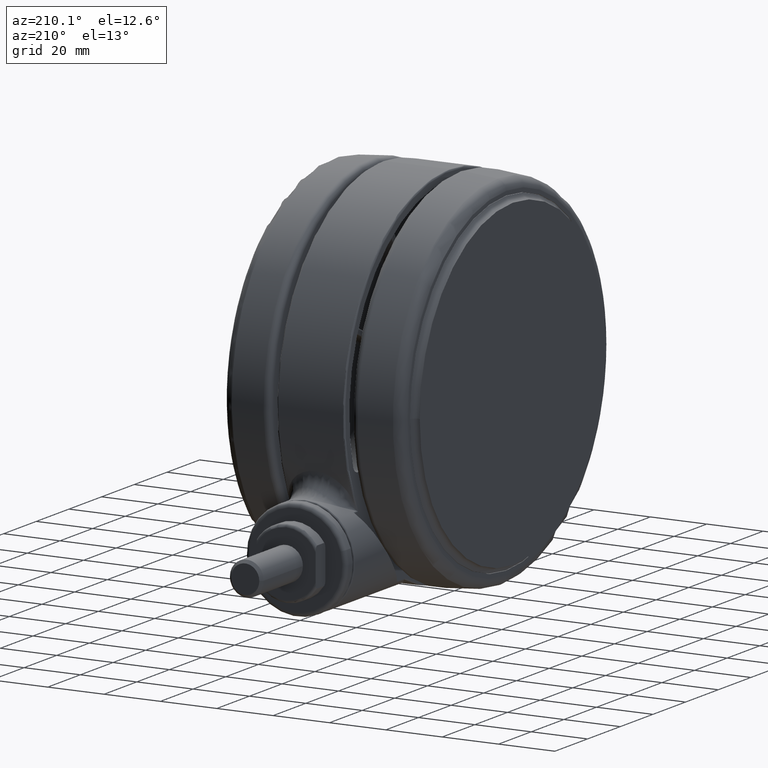
[diagram: clean part render]
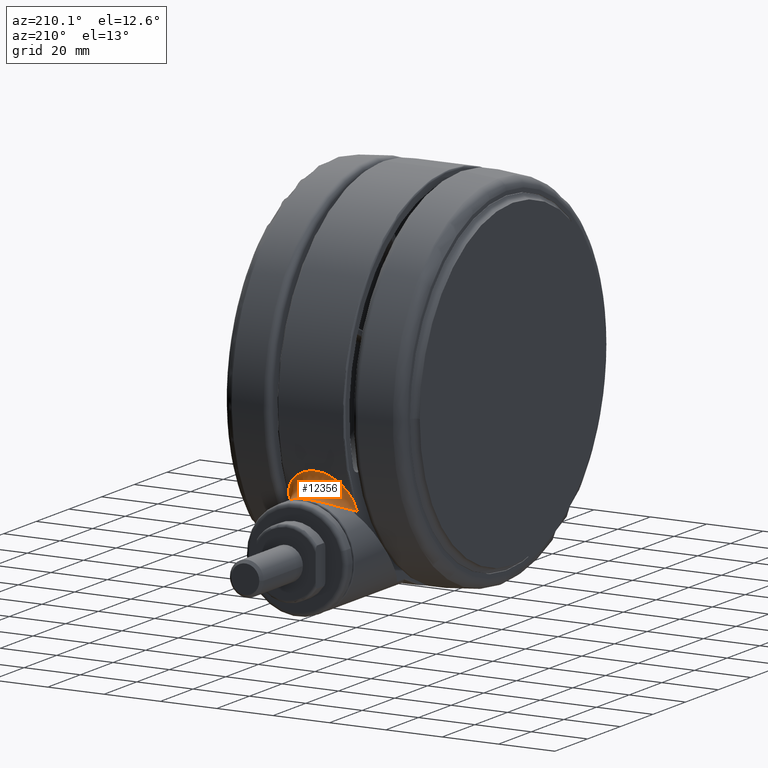
[diagram: same view with one face highlighted and labeled with its STEP entity id]
A machine part, auxiliary view. The second image highlights one B-rep face of the part: STEP entity #12356.
In plain terms, the highlighted face is a freeform B-spline surface patch.
Its self-contained STEP definition (entity closure, byte-faithful):
#676 = CARTESIAN_POINT ( 'NONE',  ( 33.45378203406610900, 58.40142312869452500, -44.71070690301166900 ) ) ;
#922 = CARTESIAN_POINT ( 'NONE',  ( 31.80417194514429400, 62.91710241786929500, -41.48588742279355300 ) ) ;
#955 = CARTESIAN_POINT ( 'NONE',  ( 26.93183713855090000, 59.16163387745659500, -24.58926750334557100 ) ) ;
#956 = VERTEX_POINT ( 'NONE', #28639 ) ;
#1216 = CARTESIAN_POINT ( 'NONE',  ( 22.80587495412946800, 60.86814413826329700, -37.49325383016357400 ) ) ;
#1457 = CARTESIAN_POINT ( 'NONE',  ( 31.67393550585059700, 56.76621269978852500, -45.82328586648191000 ) ) ;
#1693 = CARTESIAN_POINT ( 'NONE',  ( 30.93557965096987400, 57.44427383179517200, -28.12039462866848900 ) ) ;
#1745 = VERTEX_POINT ( 'NONE', #3814 ) ;
#1936 = CARTESIAN_POINT ( 'NONE',  ( 30.17389834203347500, 58.06957915945496000, -36.86387200835108800 ) ) ;
#2137 = CARTESIAN_POINT ( 'NONE',  ( 30.85767680942724000, 57.20841156188682700, -22.59998678528551300 ) ) ;
#2185 = CARTESIAN_POINT ( 'NONE',  ( 33.74100289068419300, 55.56191394852005800, -45.29268016542302900 ) ) ;
#2330 = CARTESIAN_POINT ( 'NONE',  ( 34.36085162366796200, 55.22859210138996400, -46.05530611327466800 ) ) ;
#2380 = CARTESIAN_POINT ( 'NONE',  ( 27.40443335749018800, 58.94127830065013300, -24.26384737468194100 ) ) ;
#2428 = CARTESIAN_POINT ( 'NONE',  ( 31.37476326439533700, 63.99876889177347300, -27.87709333704701500 ) ) ;
#2572 = CARTESIAN_POINT ( 'NONE',  ( 32.51906755616203500, 56.32028148946076100, -45.74700741498661200 ) ) ;
#2627 = CARTESIAN_POINT ( 'NONE',  ( 23.53622462848794700, 60.58920958930831100, -28.85910942606973600 ) ) ;
#2669 = CARTESIAN_POINT ( 'NONE',  ( 30.82054201902632700, 65.32964770023761500, -38.23387646173032600 ) ) ;
#2875 = CARTESIAN_POINT ( 'NONE',  ( 22.63563683539776900, 60.93134109894931100, -36.72101404126439700 ) ) ;
#2923 = CARTESIAN_POINT ( 'NONE',  ( 34.22633808121327800, 55.86155226893794200, -45.84817176668151700 ) ) ;
#2940 = CARTESIAN_POINT ( 'NONE',  ( 32.17643451034501800, 56.50797369393726700, -22.48858511847957700 ) ) ;
#3104 = CARTESIAN_POINT ( 'NONE',  ( 24.83655952838691400, 60.06793484517844200, -41.44564791616737400 ) ) ;
#3174 = CARTESIAN_POINT ( 'NONE',  ( 34.35927885034869400, 55.22964510799536000, -22.14533324549036700 ) ) ;
#3344 = CARTESIAN_POINT ( 'NONE',  ( 28.67500760954952500, 58.33400287056930000, -44.70101322629943000 ) ) ;
#3814 = CARTESIAN_POINT ( 'NONE',  ( 30.85767680942724000, 57.20841156188682700, -22.59998678528551300 ) ) ;
#4741 = CARTESIAN_POINT ( 'NONE',  ( 30.51502983712470000, 66.07683388416536700, -31.89133214798207300 ) ) ;
#4989 = CARTESIAN_POINT ( 'NONE',  ( 32.45790099931790000, 61.25055330990330300, -25.25708756687142700 ) ) ;
#5229 = CARTESIAN_POINT ( 'NONE',  ( 34.08885830141999000, 56.35140521876679300, -22.54204867419069900 ) ) ;
#6334 = CARTESIAN_POINT ( 'NONE',  ( 33.23734875120872100, 59.04762681378237900, -44.35936644057817100 ) ) ;
#6581 = CARTESIAN_POINT ( 'NONE',  ( 31.31636877900149300, 64.13216514004594200, -40.14199277869705900 ) ) ;
#6616 = CARTESIAN_POINT ( 'NONE',  ( 25.19398134796530900, 59.92112843510255300, -26.25733972223133600 ) ) ;
#6860 = CARTESIAN_POINT ( 'NONE',  ( 23.60653071438858700, 60.56209390435804400, -39.47599626260011300 ) ) ;
#7103 = CARTESIAN_POINT ( 'NONE',  ( 33.74870384346193200, 55.55756153866278200, -46.09815369055473200 ) ) ;
#7363 = CARTESIAN_POINT ( 'NONE',  ( 30.48944223966626800, 57.80109467237073800, -29.68470853591165300 ) ) ;
#7599 = CARTESIAN_POINT ( 'NONE',  ( 30.37155411329338900, 57.89985161788901300, -37.95644483310741900 ) ) ;
#7743 = CARTESIAN_POINT ( 'NONE',  ( 34.30508024189295900, 55.53069168064797600, -45.95325033755040800 ) ) ;
#7790 = CARTESIAN_POINT ( 'NONE',  ( 30.72748461653197800, 57.27864845337011000, -22.63798909152320200 ) ) ;
#7838 = CARTESIAN_POINT ( 'NONE',  ( 34.41541522151082000, 55.14144716210312700, -46.10000000000003000 ) ) ;
#7989 = CARTESIAN_POINT ( 'NONE',  ( 34.34983006501241200, 55.23679723093683700, -46.05048026319565900 ) ) ;
#8037 = CARTESIAN_POINT ( 'NONE',  ( 26.67738830504683600, 59.27382860698435300, -24.82376520895497800 ) ) ;
#8090 = CARTESIAN_POINT ( 'NONE',  ( 30.88821682072107700, 65.18094783321471700, -29.62645166784283300 ) ) ;
#8239 = CARTESIAN_POINT ( 'NONE',  ( 31.53886986987493300, 56.84328778389036800, -45.65571564865221900 ) ) ;
#8292 = CARTESIAN_POINT ( 'NONE',  ( 23.25986000947422000, 60.69596897593385200, -29.46952685547006100 ) ) ;
#8333 = CARTESIAN_POINT ( 'NONE',  ( 31.03540144115901000, 64.81400228587256200, -39.14586395928398600 ) ) ;
#8535 = CARTESIAN_POINT ( 'NONE',  ( 22.69369770015514800, 60.90974082231656400, -36.96602451007599700 ) ) ;
#8597 = CARTESIAN_POINT ( 'NONE',  ( 33.48328000188625700, 55.79128462073217100, -22.34576774793072900 ) ) ;
#8791 = CARTESIAN_POINT ( 'NONE',  ( 25.76471178823903300, 59.67782639750701200, -42.54105573440213600 ) ) ;
#8849 = CARTESIAN_POINT ( 'NONE',  ( 34.36658754931568900, 55.22562300188388200, -22.14255972799229600 ) ) ;
#9031 = CARTESIAN_POINT ( 'NONE',  ( 29.82113786353204800, 57.75635851285488800, -45.23463577218235800 ) ) ;
#10431 = CARTESIAN_POINT ( 'NONE',  ( 30.61250370918296700, 65.84271139054567400, -31.11424504967487100 ) ) ;
#10669 = CARTESIAN_POINT ( 'NONE',  ( 32.79271872454821600, 60.34144584278084300, -24.61455989449467200 ) ) ;
#11695 = EDGE_CURVE ( 'NONE', #39783, #25799, #17771, .T. ) ;
#12036 = CARTESIAN_POINT ( 'NONE',  ( 33.12891712486482000, 59.36356441714115600, -44.17742409410323000 ) ) ;
#12076 = CARTESIAN_POINT ( 'NONE',  ( 33.74878337948095500, 55.55751189787058300, -22.10175125833897200 ) ) ;
#12282 = CARTESIAN_POINT ( 'NONE',  ( 30.99997914033091800, 64.89866807067535600, -39.00725555612128700 ) ) ;
#12326 = CARTESIAN_POINT ( 'NONE',  ( 23.79107163508208700, 60.49071785132794300, -28.29856950290542300 ) ) ;
#12356 = ADVANCED_FACE ( 'NONE', ( #58199 ), #37621, .T. ) ;
#12582 = CARTESIAN_POINT ( 'NONE',  ( 24.22630738032541900, 60.31698079185793700, -40.58104261071206100 ) ) ;
#12818 = CARTESIAN_POINT ( 'NONE',  ( 34.41541522151076300, 55.14144716210302700, -22.10000000000001900 ) ) ;
#12862 = B_SPLINE_CURVE_WITH_KNOTS ( 'NONE', 3,
 ( #31104, #70813, #2940, #42543, #8597, #48274, #14280, #53953, #19972, #59643, #25653, #65304, #31346, #71043, #37090, #3174, #42794, #8849, #48516, #14525, #54196, #20208, #59880, #25889, #65554, #31583, #71286, #37336 ),
 .UNSPECIFIED., .F., .F.,
 ( 4, 2, 2, 2, 2, 2, 2, 2, 2, 2, 2, 2, 2, 4 ),
 ( -5.999999999423310300E-008, 0.002245522492359296800, 0.003368313738538941800, 0.003649011550083845000, 0.003929709361628747800, 0.003999883814514982500, 0.004034971040958090300, 0.004052514654179657600, 0.004061286460790433500, 0.004070058267401209300, 0.004105145493844305000, 0.004140232720287401500, 0.004210407173173582500, 0.004491104984718294900 ),
 .UNSPECIFIED. ) ;
#13058 = CARTESIAN_POINT ( 'NONE',  ( 30.22688317341956200, 58.02524782608641400, -31.03156326798890400 ) ) ;
#13294 = CARTESIAN_POINT ( 'NONE',  ( 30.55571354155276600, 57.74662488531540600, -38.76066206714950400 ) ) ;
#13444 = CARTESIAN_POINT ( 'NONE',  ( 34.34690716085670200, 55.33740868052457500, -46.01676130108457800 ) ) ;
#13495 = CARTESIAN_POINT ( 'NONE',  ( 30.38924208244876000, 57.45864828589893800, -22.74730794547273400 ) ) ;
#13549 = CARTESIAN_POINT ( 'NONE',  ( 34.22642030067455500, 55.86150193917915600, -22.35173358183595100 ) ) ;
#13687 = CARTESIAN_POINT ( 'NONE',  ( 34.32848231075918500, 55.25422770092727400, -46.04103568429810200 ) ) ;
#13732 = CARTESIAN_POINT ( 'NONE',  ( 25.74205844577406300, 59.68758888097082100, -25.67161477966177000 ) ) ;
#13776 = CARTESIAN_POINT ( 'NONE',  ( 30.65329683021622000, 65.74508150190715100, -30.86486151949601700 ) ) ;
#13863 = EDGE_CURVE ( 'NONE', #1745, #25799, #12862, .T. ) ;
#13929 = CARTESIAN_POINT ( 'NONE',  ( 30.88542585593857800, 57.19343415430707700, -45.60001317750133200 ) ) ;
#13978 = CARTESIAN_POINT ( 'NONE',  ( 22.81410850016154500, 60.86480686348003400, -30.74381804980060600 ) ) ;
#14026 = CARTESIAN_POINT ( 'NONE',  ( 31.36986771782102000, 64.00131034948469700, -40.30955521367854300 ) ) ;
#14211 = CARTESIAN_POINT ( 'NONE',  ( 23.01866967734219200, 60.78802081036685900, -38.09847191435390800 ) ) ;
#14280 = CARTESIAN_POINT ( 'NONE',  ( 33.96000293520540900, 55.50641430422516700, -22.26269152472845300 ) ) ;
#14466 = CARTESIAN_POINT ( 'NONE',  ( 26.46696205727963800, 59.36763903679734300, -43.17996524115104500 ) ) ;
#14525 = CARTESIAN_POINT ( 'NONE',  ( 34.37137893667972600, 55.24055885177342900, -22.14683346307052500 ) ) ;
#14697 = CARTESIAN_POINT ( 'NONE',  ( 30.23884688142797500, 57.53796477734240300, -45.38961938130316300 ) ) ;
#16116 = CARTESIAN_POINT ( 'NONE',  ( 30.77614859069719700, 65.45021851770759700, -30.19591483090587400 ) ) ;
#16354 = CARTESIAN_POINT ( 'NONE',  ( 33.04944884259440100, 59.61322262424958800, -24.16006867629340200 ) ) ;
#17469 = CARTESIAN_POINT ( 'NONE',  ( 34.08853061306884800, 56.35098406011145000, -45.65760042553606000 ) ) ;
#17712 = CARTESIAN_POINT ( 'NONE',  ( 32.93116760969415000, 59.93047397256243200, -43.83786283770091800 ) ) ;
#17771 = B_SPLINE_CURVE_WITH_KNOTS ( 'NONE', 3,
 ( #49858, #32693, #27234, #66912, #32939, #72627, #38658, #4741, #44369, #10431, #50106, #16116, #55798, #21802, #61453, #27478, #67161, #33183, #72851, #38912, #4989, #44617, #10669, #50357, #16354, #56039, #22050, #61693, #27736, #67411, #33423, #73096, #39156, #5229, #44854 ),
 .UNSPECIFIED., .F., .F.,
 ( 4, 2, 1, 2, 2, 1, 2, 2, 1, 2, 2, 2, 2, 2, 2, 2, 1, 1, 2, 4 ),
 ( 0.4997011025787161400, 0.5149259359215335700, 0.5301507692643509000, 0.5606004359499849900, 0.5758252692928023100, 0.5910501026356195200, 0.6214997693212548400, 0.6367246026640726000, 0.6519494360068902600, 0.6823991026925249100, 0.7432984360637934200, 0.8041977694350619400, 0.8346474361206963600, 0.8650971028063310100, 0.8727095194777400000, 0.8765157278134445600, 0.8803219361491492200, 0.8955467694919681000, 0.9259964361776056300, 0.9868957695488810300 ),
 .UNSPECIFIED. ) ;
#17967 = CARTESIAN_POINT ( 'NONE',  ( 30.86377386237307300, 65.22596706967543400, -38.42490316775631200 ) ) ;
#18013 = CARTESIAN_POINT ( 'NONE',  ( 23.10687534640914000, 60.75437077399762800, -29.85012463052701300 ) ) ;
#18245 = CARTESIAN_POINT ( 'NONE',  ( 25.18820493432042100, 59.92356131130812000, -41.92588773839009500 ) ) ;
#18495 = CARTESIAN_POINT ( 'NONE',  ( 33.74187732904411500, 55.56137469145468100, -22.90629961749211300 ) ) ;
#18741 = CARTESIAN_POINT ( 'NONE',  ( 30.11172641399305400, 58.12654712134719400, -31.85725148658714500 ) ) ;
#18992 = CARTESIAN_POINT ( 'NONE',  ( 30.93171862366300600, 57.44656465847192100, -40.06776963966108700 ) ) ;
#19135 = CARTESIAN_POINT ( 'NONE',  ( 34.35942675118120300, 55.28447360773028400, -46.03606789043640600 ) ) ;
#19183 = CARTESIAN_POINT ( 'NONE',  ( 30.30922790666638600, 57.50087852135639800, -22.77472115942669700 ) ) ;
#19226 = CARTESIAN_POINT ( 'NONE',  ( 33.58989448621878200, 58.00155285172966300, -23.27304230140127200 ) ) ;
#19371 = CARTESIAN_POINT ( 'NONE',  ( 34.28492292116717300, 55.28875097762662000, -46.02358536668796100 ) ) ;
#19417 = CARTESIAN_POINT ( 'NONE',  ( 24.81660103994915500, 60.07618269368134600, -26.76867654488042400 ) ) ;
#19459 = CARTESIAN_POINT ( 'NONE',  ( 30.52076201876471700, 66.06286285484297600, -31.82202607197391600 ) ) ;
#19661 = CARTESIAN_POINT ( 'NONE',  ( 22.57096161245352000, 60.95535683339331700, -31.74024620383021000 ) ) ;
#19713 = CARTESIAN_POINT ( 'NONE',  ( 31.97352489173108100, 62.48874538045364300, -41.91187857922576400 ) ) ;
#19903 = CARTESIAN_POINT ( 'NONE',  ( 23.54576438761290500, 60.58563333715202500, -39.34500890495595400 ) ) ;
#19972 = CARTESIAN_POINT ( 'NONE',  ( 34.19232535699968900, 55.35763977139697500, -22.20864808847196100 ) ) ;
#20148 = CARTESIAN_POINT ( 'NONE',  ( 27.06109287585497800, 59.10008874835167300, -43.67055891791640900 ) ) ;
#20208 = CARTESIAN_POINT ( 'NONE',  ( 34.36238142190119800, 55.27230956761334800, -22.15932818831078800 ) ) ;
#20380 = CARTESIAN_POINT ( 'NONE',  ( 30.56000969761276000, 57.36831076899275000, -45.50066272966974900 ) ) ;
#21802 = CARTESIAN_POINT ( 'NONE',  ( 30.86747597106784000, 65.23062276913641700, -29.76120331054965700 ) ) ;
#22050 = CARTESIAN_POINT ( 'NONE',  ( 33.12118085617735400, 59.40530525637161200, -24.03727319394216600 ) ) ;
#22204 = EDGE_CURVE ( 'NONE', #25336, #39783, #30292, .T. ) ;
#23418 = CARTESIAN_POINT ( 'NONE',  ( 32.56062144865130400, 60.94559385573938900, -43.14870040092471000 ) ) ;
#23453 = CARTESIAN_POINT ( 'NONE',  ( 31.67788914074477800, 56.76398187256052100, -22.37130675191471200 ) ) ;
#23664 = CARTESIAN_POINT ( 'NONE',  ( 30.77170339733654100, 65.44691200715455200, -37.98496037616487800 ) ) ;
#23710 = CARTESIAN_POINT ( 'NONE',  ( 22.71813085654341400, 60.90071000043835200, -31.08452832265203700 ) ) ;
#23948 = CARTESIAN_POINT ( 'NONE',  ( 26.92193570123350800, 59.16611697942752100, -43.58823716197657200 ) ) ;
#24024 = ORIENTED_EDGE ( 'NONE', *, *, #46865, .F. ) ;
#24205 = CARTESIAN_POINT ( 'NONE',  ( 32.81111862293008800, 56.14881274807933700, -24.21443024956170500 ) ) ;
#24438 = CARTESIAN_POINT ( 'NONE',  ( 30.00757948290807100, 58.22014125949848300, -32.97481348149904800 ) ) ;
#24675 = CARTESIAN_POINT ( 'NONE',  ( 31.51511591100198500, 57.01545435229754600, -41.58037894574586300 ) ) ;
#24810 = CARTESIAN_POINT ( 'NONE',  ( 34.36684849483518900, 55.25283492094482100, -46.04806017939618100 ) ) ;
#24856 = CARTESIAN_POINT ( 'NONE',  ( 30.20516816118111700, 57.55566280843479600, -22.81098914732463700 ) ) ;
#24913 = CARTESIAN_POINT ( 'NONE',  ( 32.90226154582866500, 60.04400671124336200, -24.40840294769961400 ) ) ;
#25053 = CARTESIAN_POINT ( 'NONE',  ( 34.11900713575502000, 55.40559142035116500, -45.97265322692148700 ) ) ;
#25108 = CARTESIAN_POINT ( 'NONE',  ( 24.52882122386221700, 60.19424928666351300, -27.16199617994394400 ) ) ;
#25154 = CARTESIAN_POINT ( 'NONE',  ( 30.39476508514814100, 66.37136129125755700, -33.44251902155090100 ) ) ;
#25336 = VERTEX_POINT ( 'NONE', #44197 ) ;
#25342 = CARTESIAN_POINT ( 'NONE',  ( 22.33899661883782900, 61.04071781328430300, -33.43434025362709100 ) ) ;
#25383 = CARTESIAN_POINT ( 'NONE',  ( 32.65309852498069900, 60.69988801606471200, -43.33850019584082200 ) ) ;
#25588 = CARTESIAN_POINT ( 'NONE',  ( 24.01236456024622300, 60.40228257277431800, -40.22387728627675300 ) ) ;
#25653 = CARTESIAN_POINT ( 'NONE',  ( 34.30069050844966200, 55.27658804122043500, -22.17043312604975500 ) ) ;
#25799 = VERTEX_POINT ( 'NONE', #26999 ) ;
#25821 = CARTESIAN_POINT ( 'NONE',  ( 27.82149660301734400, 58.74508064988045700, -44.19546713598208500 ) ) ;
#25889 = CARTESIAN_POINT ( 'NONE',  ( 34.35223648237494100, 55.31480003283708400, -22.17511674097446700 ) ) ;
#26066 = CARTESIAN_POINT ( 'NONE',  ( 30.88542585593857800, 57.19343415430707700, -45.60001317750133200 ) ) ;
#26999 = CARTESIAN_POINT ( 'NONE',  ( 34.28797555004973700, 55.61847226194731800, -22.27143769148011300 ) ) ;
#27234 = CARTESIAN_POINT ( 'NONE',  ( 30.39624465938997100, 66.36721340055277100, -33.78829076249908800 ) ) ;
#27478 = CARTESIAN_POINT ( 'NONE',  ( 31.07686011391467300, 64.72522153362402300, -28.90054944847633700 ) ) ;
#27736 = CARTESIAN_POINT ( 'NONE',  ( 33.16230185567109600, 59.28516581692573300, -23.96771043783830300 ) ) ;
#28639 = CARTESIAN_POINT ( 'NONE',  ( 30.88542585593857800, 57.19343415430707700, -45.60001317750133200 ) ) ;
#29091 = CARTESIAN_POINT ( 'NONE',  ( 32.22236579196265900, 61.84207606314655700, -42.45548158982958900 ) ) ;
#29136 = CARTESIAN_POINT ( 'NONE',  ( 29.58964514068107500, 57.87977133889008700, -23.02527136428852800 ) ) ;
#29335 = CARTESIAN_POINT ( 'NONE',  ( 30.39438788888696400, 66.37039662416576400, -35.32657548254141500 ) ) ;
#29379 = CARTESIAN_POINT ( 'NONE',  ( 22.34036023530328700, 61.04021874739687100, -33.22335869721979400 ) ) ;
#29631 = CARTESIAN_POINT ( 'NONE',  ( 28.88563978627881900, 58.23368938569748100, -44.83244844785986800 ) ) ;
#29874 = CARTESIAN_POINT ( 'NONE',  ( 31.99666309720423000, 56.68355561026037700, -25.61475939995030500 ) ) ;
#30123 = CARTESIAN_POINT ( 'NONE',  ( 29.98274144948613800, 58.24326324530645100, -34.64988399648483200 ) ) ;
#30292 = B_SPLINE_CURVE_WITH_KNOTS ( 'NONE', 3,
 ( #51471, #17469, #68526, #34567, #676, #40285, #6334, #45982, #12036, #51708, #17712, #57406, #23418, #63057, #29091, #68777, #34817, #922, #40535, #6581, #46234, #12282, #51959, #17967, #57645, #23664, #63321, #29335, #69016 ),
 .UNSPECIFIED., .F., .F.,
 ( 4, 2, 2, 2, 2, 1, 2, 2, 2, 2, 2, 2, 2, 2, 4 ),
 ( 0.01307860757899585900, 0.07390641945396295200, 0.1043203253914465200, 0.1195272783601880700, 0.1271307548445588000, 0.1347342313289295300, 0.1651481372664124800, 0.1955620432038954200, 0.2259759491413783900, 0.2563898550788609200, 0.3172176669538263000, 0.3476315728913094700, 0.3628385258600505500, 0.3780454788287916400, 0.4997011025787161400 ),
 .UNSPECIFIED. ) ;
#30379 = CARTESIAN_POINT ( 'NONE',  ( 32.24515774387597800, 56.51667479510322100, -43.04517112518862400 ) ) ;
#30518 = CARTESIAN_POINT ( 'NONE',  ( 34.37022519752107300, 55.22874353398172100, -46.05704411763764500 ) ) ;
#30570 = CARTESIAN_POINT ( 'NONE',  ( 29.50239437028100300, 57.91978950853074800, -23.08332653724181000 ) ) ;
#30614 = CARTESIAN_POINT ( 'NONE',  ( 32.20808742630523400, 61.91137717163897500, -25.76568896387358300 ) ) ;
#30761 = CARTESIAN_POINT ( 'NONE',  ( 33.88617623307732900, 55.55114902242553400, -45.92317138293299200 ) ) ;
#30808 = CARTESIAN_POINT ( 'NONE',  ( 23.99585175553981000, 60.40883973454327800, -27.98655297348598500 ) ) ;
#30854 = CARTESIAN_POINT ( 'NONE',  ( 30.42493895046262200, 66.29223004663097600, -35.38610065792488500 ) ) ;
#31038 = CARTESIAN_POINT ( 'NONE',  ( 22.40040027287965400, 61.01833995043119800, -35.46171010077048200 ) ) ;
#31091 = CARTESIAN_POINT ( 'NONE',  ( 33.35742638077722000, 58.70252627138053500, -44.56492233819400900 ) ) ;
#31104 = CARTESIAN_POINT ( 'NONE',  ( 30.85767680942724000, 57.20841156188682700, -22.59998678528551300 ) ) ;
#31286 = CARTESIAN_POINT ( 'NONE',  ( 24.45497719440296100, 60.22427801439929600, -40.91772146268632300 ) ) ;
#31346 = CARTESIAN_POINT ( 'NONE',  ( 34.33538310276527000, 55.24852969582537600, -22.15594047201375400 ) ) ;
#31531 = CARTESIAN_POINT ( 'NONE',  ( 28.14976974487996500, 58.58835907946632200, -44.39846952754952300 ) ) ;
#31583 = CARTESIAN_POINT ( 'NONE',  ( 34.32286556505472700, 55.44342289604955500, -22.21995186116820500 ) ) ;
#32693 = CARTESIAN_POINT ( 'NONE',  ( 30.39445124485613500, 66.37164816955024100, -33.94649778834990200 ) ) ;
#32939 = CARTESIAN_POINT ( 'NONE',  ( 30.41991885408612000, 66.30831619192083800, -33.00231471533453500 ) ) ;
#33183 = CARTESIAN_POINT ( 'NONE',  ( 31.50107299475343600, 63.68876888769367600, -27.50687675431564500 ) ) ;
#33423 = CARTESIAN_POINT ( 'NONE',  ( 33.40437314908980000, 58.56714683440936400, -23.56724930811662200 ) ) ;
#34567 = CARTESIAN_POINT ( 'NONE',  ( 33.56132347330712000, 58.07031513561734200, -44.87856006602570600 ) ) ;
#34817 = CARTESIAN_POINT ( 'NONE',  ( 31.90388836192443400, 62.66394133861008700, -41.73013351469853700 ) ) ;
#34865 = CARTESIAN_POINT ( 'NONE',  ( 27.57356933906683200, 58.86630868113037000, -24.11871903752438200 ) ) ;
#35114 = CARTESIAN_POINT ( 'NONE',  ( 22.43605598638607300, 61.00542840629463400, -35.81457740243924800 ) ) ;
#35370 = CARTESIAN_POINT ( 'NONE',  ( 30.97127155891215700, 57.15243086364500200, -45.64911281560199500 ) ) ;
#35617 = CARTESIAN_POINT ( 'NONE',  ( 31.31169048735816700, 57.16302710488379500, -27.10125296800273600 ) ) ;
#35851 = CARTESIAN_POINT ( 'NONE',  ( 30.10216733466859300, 58.13391682641991300, -36.31313104047905700 ) ) ;
#36000 = CARTESIAN_POINT ( 'NONE',  ( 34.28795488865886700, 55.61807250684000100, -45.92856248409515300 ) ) ;
#36098 = CARTESIAN_POINT ( 'NONE',  ( 33.10685855512298300, 55.96062812179369000, -44.42783727009604200 ) ) ;
#36242 = CARTESIAN_POINT ( 'NONE',  ( 34.36310312415615400, 55.22693077220075300, -46.05630478329662500 ) ) ;
#36295 = CARTESIAN_POINT ( 'NONE',  ( 28.15903806299617100, 58.58649671047056300, -23.75721250415117300 ) ) ;
#36345 = CARTESIAN_POINT ( 'NONE',  ( 31.56628124795872400, 63.52728804682396200, -27.32396945594032900 ) ) ;
#36497 = CARTESIAN_POINT ( 'NONE',  ( 33.16820816189248700, 55.96557755373790900, -45.81754956179008800 ) ) ;
#36549 = CARTESIAN_POINT ( 'NONE',  ( 23.68281213228884100, 60.53206256131112200, -28.56394961349961300 ) ) ;
#36595 = CARTESIAN_POINT ( 'NONE',  ( 30.63936916096695400, 65.76489157233568500, -37.30003386651719000 ) ) ;
#36795 = CARTESIAN_POINT ( 'NONE',  ( 22.58059018820376100, 60.95177174614773500, -36.46947112114221300 ) ) ;
#36841 = CARTESIAN_POINT ( 'NONE',  ( 34.02062813045172600, 56.58331860152564700, -45.56354494675393600 ) ) ;
#37026 = CARTESIAN_POINT ( 'NONE',  ( 24.74068028622228300, 60.10748316977531400, -41.31869377110954400 ) ) ;
#37090 = CARTESIAN_POINT ( 'NONE',  ( 34.35257126454958200, 55.23453852959153200, -22.14824396819225800 ) ) ;
#37270 = CARTESIAN_POINT ( 'NONE',  ( 28.34712190659584200, 58.49312736997607900, -44.51417581783356100 ) ) ;
#37336 = CARTESIAN_POINT ( 'NONE',  ( 34.28797555004973700, 55.61847226194731800, -22.27143769148011300 ) ) ;
#37621 =( BOUNDED_SURFACE ( )  B_SPLINE_SURFACE ( 2, 3, ( 
 ( #40323, #12076, #57447, #23453, #63109, #29136, #68815, #34865, #955, #40575, #6616, #46271, #12326, #52002, #18013, #57679, #23710, #63358, #29379, #69064, #35114, #1216, #40820, #6860, #46517, #12582, #52243, #18245, #57933, #23948, #63611, #29631, #69319, #35370, #1457, #41068, #7103, #46776 ),
 ( #12818, #52482, #18495, #58173, #24205, #63860, #29874, #69559, #35617, #1693, #41314, #7363, #47023, #13058, #52718, #18741, #58413, #24438, #64100, #30123, #69805, #35851, #1936, #41565, #7599, #47274, #13294, #52959, #18992, #58658, #24675, #64337, #30379, #70039, #36098, #2185, #41808, #7838 ),
 ( #47519, #13549, #53194, #19226, #58889, #24913, #64585, #30614, #70297, #36345, #2428, #42035, #8090, #47768, #13776, #53438, #19459, #59123, #25154, #64807, #30854, #70544, #36595, #2669, #42277, #8333, #48013, #14026, #53694, #19713, #59371, #25383, #65048, #31091, #70800, #36841, #2923, #42522 ) ),
 .UNSPECIFIED., .F., .F., .F. ) 
 B_SPLINE_SURFACE_WITH_KNOTS ( ( 3, 3 ),
 ( 4, 2, 2, 2, 2, 2, 2, 2, 2, 2, 2, 2, 2, 2, 2, 2, 2, 2, 4 ),
 ( 0.0000000000000000000, 1.000000000000000000 ),
 ( 1.734723475976805000E-018, 0.001667139977258235000, 0.003334279954516464900, 0.005001419931774699900, 0.006668559909032929800, 0.008335699886291160500, 0.01000283986354940000, 0.01083640985217850000, 0.01166997984080762000, 0.01333711981806586100, 0.01500425979532410100, 0.01667139977258230000, 0.01750496976121145000, 0.01833853974984054800, 0.02000567972709880000, 0.02167281970435699900, 0.02333995968161525100, 0.02500709965887349900, 0.02667423963613169800 ),
 .UNSPECIFIED. ) 
 GEOMETRIC_REPRESENTATION_ITEM ( )  RATIONAL_B_SPLINE_SURFACE ( (
 ( 1.000000000000000000, 1.000000000000000000, 1.000000000000000000, 1.000000000000000000, 1.000000000000000000, 1.000000000000000000, 1.000000000000000000, 1.000000000000000000, 1.000000000000000000, 1.000000000000000000, 1.000000000000000000, 1.000000000000000000, 1.000000000000000000, 1.000000000000000000, 1.000000000000000000, 1.000000000000000000, 1.000000000000000000, 1.000000000000000000, 1.000000000000000000, 1.000000000000000000, 1.000000000000000000, 1.000000000000000000, 1.000000000000000000, 1.000000000000000000, 1.000000000000000000, 1.000000000000000000, 1.000000000000000000, 1.000000000000000000, 1.000000000000000000, 1.000000000000000000, 1.000000000000000000, 1.000000000000000000, 1.000000000000000000, 1.000000000000000000, 1.000000000000000000, 1.000000000000000000, 1.000000000000000000, 1.000000000000000000),
 ( 0.5647258037007070200, 0.5655213132374179400, 0.5663961334029860000, 0.5683943253832669500, 0.5695198488734619600, 0.5720558501713710600, 0.5734669485592389600, 0.5765124468071859400, 0.5781475654902089600, 0.5814891669682470400, 0.5831882247234719800, 0.5863946730205730200, 0.5879006976311800200, 0.5898266888059070500, 0.5904132971752730200, 0.5914474913350850100, 0.5918951216355640100, 0.5929913961683049900, 0.5933905047672000100, 0.5933911489362709800, 0.5929928103425450300, 0.5915332551927580100, 0.5904725584566099500, 0.5885440730934089500, 0.5878456986428100000, 0.5863691916049899000, 0.5855910221178269900, 0.5831839304220680600, 0.5814835273328519100, 0.5781309389227740100, 0.5764800648593229000, 0.5734174611101989800, 0.5720131733984199500, 0.5694909597518300600, 0.5683740286660540200, 0.5663900183342609500, 0.5655207354607549900, 0.5647258037007060200),
 ( 1.000000000000000000, 1.000000000000000000, 1.000000000000000000, 1.000000000000000000, 1.000000000000000000, 1.000000000000000000, 1.000000000000000000, 1.000000000000000000, 1.000000000000000000, 1.000000000000000000, 1.000000000000000000, 1.000000000000000000, 1.000000000000000000, 1.000000000000000000, 1.000000000000000000, 1.000000000000000000, 1.000000000000000000, 1.000000000000000000, 1.000000000000000000, 1.000000000000000000, 1.000000000000000000, 1.000000000000000000, 1.000000000000000000, 1.000000000000000000, 1.000000000000000000, 1.000000000000000000, 1.000000000000000000, 1.000000000000000000, 1.000000000000000000, 1.000000000000000000, 1.000000000000000000, 1.000000000000000000, 1.000000000000000000, 1.000000000000000000, 1.000000000000000000, 1.000000000000000000, 1.000000000000000000, 1.000000000000000000) ) ) 
 REPRESENTATION_ITEM ( '' )  SURFACE ( )  );
#38658 = CARTESIAN_POINT ( 'NONE',  ( 30.49859701246722200, 66.11645048846114000, -32.04546503694285100 ) ) ;
#38912 = CARTESIAN_POINT ( 'NONE',  ( 32.12636784715738300, 62.12047182332811700, -25.94535852095509700 ) ) ;
#39156 = CARTESIAN_POINT ( 'NONE',  ( 33.88168412185029900, 57.05611160106551700, -22.83653937607277500 ) ) ;
#39783 = VERTEX_POINT ( 'NONE', #46178 ) ;
#40285 = CARTESIAN_POINT ( 'NONE',  ( 33.29156910223196100, 58.88741027641528800, -44.44850423542865800 ) ) ;
#40323 = CARTESIAN_POINT ( 'NONE',  ( 34.41541522151078400, 55.14144716210302000, -22.10000000000001200 ) ) ;
#40535 = CARTESIAN_POINT ( 'NONE',  ( 31.49989215809896600, 63.68182431847907300, -40.69061770652544400 ) ) ;
#40575 = CARTESIAN_POINT ( 'NONE',  ( 25.74294895366766100, 59.68855295512283700, -25.65701652162759300 ) ) ;
#40820 = CARTESIAN_POINT ( 'NONE',  ( 23.07921136021746400, 60.76587895183455100, -38.30988555231945700 ) ) ;
#41068 = CARTESIAN_POINT ( 'NONE',  ( 33.06262917673565500, 55.96877385317708300, -46.04777176340834900 ) ) ;
#41314 = CARTESIAN_POINT ( 'NONE',  ( 30.77164884767125500, 57.57272030075584000, -28.63639633424427800 ) ) ;
#41565 = CARTESIAN_POINT ( 'NONE',  ( 30.31747948554488300, 57.94580394658367300, -37.68356449233015600 ) ) ;
#41808 = CARTESIAN_POINT ( 'NONE',  ( 34.07399800643767700, 55.35453578775781800, -45.70672728296342100 ) ) ;
#41951 = CARTESIAN_POINT ( 'NONE',  ( 34.35408733998298200, 55.23332563652000000, -46.05242432688827800 ) ) ;
#41999 = CARTESIAN_POINT ( 'NONE',  ( 27.15835937455233000, 59.05500250267603200, -24.44338225760731500 ) ) ;
#42035 = CARTESIAN_POINT ( 'NONE',  ( 31.03573310655522400, 64.82556934379545100, -29.02834471306710300 ) ) ;
#42189 = CARTESIAN_POINT ( 'NONE',  ( 32.19249305269579500, 56.49482402601896100, -45.71561518308091400 ) ) ;
#42234 = CARTESIAN_POINT ( 'NONE',  ( 23.46619055292160600, 60.61636194404066200, -29.00752762653284800 ) ) ;
#42277 = CARTESIAN_POINT ( 'NONE',  ( 30.88824847572275800, 65.16796058261825000, -38.54248055045553700 ) ) ;
#42480 = CARTESIAN_POINT ( 'NONE',  ( 22.65427579260403900, 60.92441407728460900, -36.80211477291717900 ) ) ;
#42522 = CARTESIAN_POINT ( 'NONE',  ( 34.41541522151078400, 55.14144716210302000, -46.10000000000001600 ) ) ;
#42543 = CARTESIAN_POINT ( 'NONE',  ( 33.15721664942731200, 55.97208782642346800, -22.38308119018323300 ) ) ;
#42722 = CARTESIAN_POINT ( 'NONE',  ( 25.33141922372161400, 59.86236691327359700, -42.07451242590615000 ) ) ;
#42794 = CARTESIAN_POINT ( 'NONE',  ( 34.36153809487395000, 55.22802053154330800, -22.14435117520045500 ) ) ;
#42968 = CARTESIAN_POINT ( 'NONE',  ( 29.27479609613584400, 58.03671581887150700, -45.00662855529272800 ) ) ;
#44197 = CARTESIAN_POINT ( 'NONE',  ( 34.28795488865886700, 55.61807250684000100, -45.92856248409515300 ) ) ;
#44369 = CARTESIAN_POINT ( 'NONE',  ( 30.55185928117825300, 65.98825710082682900, -31.57993573142853800 ) ) ;
#44617 = CARTESIAN_POINT ( 'NONE',  ( 32.56823519464138200, 60.95548588381991800, -25.03920003410142700 ) ) ;
#44854 = CARTESIAN_POINT ( 'NONE',  ( 34.28797555004973700, 55.61847226194731800, -22.27143769148011300 ) ) ;
#45982 = CARTESIAN_POINT ( 'NONE',  ( 33.15590624490420900, 59.28527717824533700, -44.22300870403707800 ) ) ;
#46178 = CARTESIAN_POINT ( 'NONE',  ( 30.39444420070181600, 66.37150897202828000, -34.09999999999893600 ) ) ;
#46234 = CARTESIAN_POINT ( 'NONE',  ( 31.07485537681721500, 64.71822388456340000, -39.29405858398850200 ) ) ;
#46271 = CARTESIAN_POINT ( 'NONE',  ( 24.21803293847656100, 60.32217842293619000, -27.57812462076738000 ) ) ;
#46517 = CARTESIAN_POINT ( 'NONE',  ( 23.80192880245215300, 60.48570348780257400, -39.85504554629117300 ) ) ;
#46776 = CARTESIAN_POINT ( 'NONE',  ( 34.41541522151078400, 55.14144716210302000, -46.10000000000001600 ) ) ;
#46865 = EDGE_CURVE ( 'NONE', #1745, #956, #61170, .T. ) ;
#47023 = CARTESIAN_POINT ( 'NONE',  ( 30.37081835238396400, 57.90119206540054400, -30.21737321296824400 ) ) ;
#47274 = CARTESIAN_POINT ( 'NONE',  ( 30.49058500449695000, 57.80031647175658100, -38.49456091904526300 ) ) ;
#47280 = ORIENTED_EDGE ( 'NONE', *, *, #11695, .F. ) ;
#47428 = CARTESIAN_POINT ( 'NONE',  ( 34.32269576050485000, 55.44400785519275100, -45.97981036434836700 ) ) ;
#47470 = CARTESIAN_POINT ( 'NONE',  ( 30.56575085140514900, 57.36516902281240200, -22.68826808428495700 ) ) ;
#47519 = CARTESIAN_POINT ( 'NONE',  ( 34.41541522151078400, 55.14144716210302000, -22.10000000000001200 ) ) ;
#47668 = CARTESIAN_POINT ( 'NONE',  ( 34.33699676363080000, 55.24718941324915300, -46.04474835209020300 ) ) ;
#47716 = CARTESIAN_POINT ( 'NONE',  ( 26.44444395755122600, 59.37808386634157600, -25.02255636260321500 ) ) ;
#47768 = CARTESIAN_POINT ( 'NONE',  ( 30.70702636191117900, 65.61626186684219400, -30.55174421890092500 ) ) ;
#47914 = CARTESIAN_POINT ( 'NONE',  ( 31.20982517370052600, 57.01822450063146900, -45.62720399147551100 ) ) ;
#47964 = CARTESIAN_POINT ( 'NONE',  ( 23.01077293390828900, 60.79100698097549600, -30.09609914001082500 ) ) ;
#48013 = CARTESIAN_POINT ( 'NONE',  ( 31.11502669235972000, 64.62164193888662600, -39.44157188639818700 ) ) ;
#48213 = CARTESIAN_POINT ( 'NONE',  ( 22.79640953228501800, 60.87145484554586300, -37.37453438213964300 ) ) ;
#48274 = CARTESIAN_POINT ( 'NONE',  ( 33.88104152542821600, 55.55437461909814100, -22.27755952902765900 ) ) ;
#48453 = CARTESIAN_POINT ( 'NONE',  ( 26.35160053930471200, 59.41893307341769800, -43.07854949590336700 ) ) ;
#48516 = CARTESIAN_POINT ( 'NONE',  ( 34.36984650259352500, 55.22678480364214700, -22.14233076713819100 ) ) ;
#48696 = CARTESIAN_POINT ( 'NONE',  ( 30.16657559731045500, 57.57589593302547100, -45.36349939107379500 ) ) ;
#49858 = CARTESIAN_POINT ( 'NONE',  ( 30.39444420070181600, 66.37150897202828000, -34.09999999999893600 ) ) ;
#50106 = CARTESIAN_POINT ( 'NONE',  ( 30.68914408912433000, 65.65913444358196200, -30.65322690052894200 ) ) ;
#50357 = CARTESIAN_POINT ( 'NONE',  ( 32.90636764358396200, 60.02372137177181300, -24.40892554080546300 ) ) ;
#51471 = CARTESIAN_POINT ( 'NONE',  ( 34.28795488865886700, 55.61807250684000100, -45.92856248409515300 ) ) ;
#51708 = CARTESIAN_POINT ( 'NONE',  ( 33.07250799687792400, 59.52607127423387800, -44.08121895102122100 ) ) ;
#51959 = CARTESIAN_POINT ( 'NONE',  ( 30.89669630213751000, 65.14694143166801200, -38.57121978443698400 ) ) ;
#52002 = CARTESIAN_POINT ( 'NONE',  ( 23.26379314125198800, 60.69457502618901400, -29.45305898932402400 ) ) ;
#52243 = CARTESIAN_POINT ( 'NONE',  ( 24.45550390691123300, 60.22456347429929500, -40.92920699994594000 ) ) ;
#52482 = CARTESIAN_POINT ( 'NONE',  ( 34.07408073902549700, 55.35448415187865800, -22.49317741889498400 ) ) ;
#52718 = CARTESIAN_POINT ( 'NONE',  ( 30.18461208148822200, 58.06221906254422300, -31.30515003488142900 ) ) ;
#52959 = CARTESIAN_POINT ( 'NONE',  ( 30.76802810884713000, 57.57487470538654900, -39.55184290462396000 ) ) ;
#53104 = CARTESIAN_POINT ( 'NONE',  ( 34.35187806534880700, 55.31618173358235400, -46.02434798751455200 ) ) ;
#53156 = CARTESIAN_POINT ( 'NONE',  ( 30.34121822447230000, 57.48400476376870900, -22.76371515054530200 ) ) ;
#53194 = CARTESIAN_POINT ( 'NONE',  ( 34.02150968416720600, 56.58276808606095900, -22.63544364922825400 ) ) ;
#53342 = CARTESIAN_POINT ( 'NONE',  ( 34.30258684032372000, 55.27508496559416800, -46.03027671638651000 ) ) ;
#53393 = CARTESIAN_POINT ( 'NONE',  ( 25.30998606259701600, 59.87142250723999800, -26.13959871664295100 ) ) ;
#53438 = CARTESIAN_POINT ( 'NONE',  ( 30.56020930658849000, 65.96835964321638800, -31.49951661523780900 ) ) ;
#53648 = CARTESIAN_POINT ( 'NONE',  ( 22.64380216433945800, 60.92837175510374700, -31.40211027221485900 ) ) ;
#53694 = CARTESIAN_POINT ( 'NONE',  ( 31.56109434116633500, 63.53000584659869800, -40.86266119461896600 ) ) ;
#53811 = ORIENTED_EDGE ( 'NONE', *, *, #22204, .F. ) ;
#53882 = CARTESIAN_POINT ( 'NONE',  ( 23.26909797688759700, 60.69243006176972700, -38.72578671632170000 ) ) ;
#53953 = CARTESIAN_POINT ( 'NONE',  ( 34.11545115949953600, 55.40797163369178000, -22.22813673743368000 ) ) ;
#54133 = CARTESIAN_POINT ( 'NONE',  ( 26.70242720510791700, 59.26210447411443000, -43.37910290249594400 ) ) ;
#54196 = CARTESIAN_POINT ( 'NONE',  ( 34.36725995577666000, 55.25108752611436100, -22.15124700725914100 ) ) ;
#54378 = CARTESIAN_POINT ( 'NONE',  ( 30.36706669633093400, 57.47039682913046500, -45.43470148881116400 ) ) ;
#55798 = CARTESIAN_POINT ( 'NONE',  ( 30.80534922965537300, 65.38004398445390600, -30.05173547107850500 ) ) ;
#56039 = CARTESIAN_POINT ( 'NONE',  ( 33.07811626452411200, 59.53045570771449500, -24.11070645386911700 ) ) ;
#57406 = CARTESIAN_POINT ( 'NONE',  ( 32.78856085873092500, 60.32553817524242100, -43.58013941227704900 ) ) ;
#57447 = CARTESIAN_POINT ( 'NONE',  ( 33.06351679544420800, 55.96822451676553100, -22.15121592283721000 ) ) ;
#57645 = CARTESIAN_POINT ( 'NONE',  ( 30.80103636288365400, 65.37654913563109500, -38.13040112715679400 ) ) ;
#57679 = CARTESIAN_POINT ( 'NONE',  ( 22.83409858686602700, 60.85741695261272400, -30.66521430070995500 ) ) ;
#57933 = CARTESIAN_POINT ( 'NONE',  ( 25.73685598967436800, 59.69115733583502200, -42.52630130999801800 ) ) ;
#58173 = CARTESIAN_POINT ( 'NONE',  ( 33.11027680738294500, 55.95858139827689800, -23.76724278942655000 ) ) ;
#58199 = FACE_OUTER_BOUND ( 'NONE', #73018, .T. ) ;
#58413 = CARTESIAN_POINT ( 'NONE',  ( 30.08101262634064100, 58.15397207882406100, -32.13672377471411300 ) ) ;
#58658 = CARTESIAN_POINT ( 'NONE',  ( 31.30509675376042700, 57.16691043907542300, -41.08207356453356600 ) ) ;
#58800 = CARTESIAN_POINT ( 'NONE',  ( 34.36196734211502200, 55.27392973646529800, -46.04003210047781600 ) ) ;
#58848 = CARTESIAN_POINT ( 'NONE',  ( 30.29438022402080600, 57.50870311007434300, -22.77986088566464000 ) ) ;
#58889 = CARTESIAN_POINT ( 'NONE',  ( 33.36324332473051900, 58.69905050603734500, -23.62693915276261300 ) ) ;
#59028 = CARTESIAN_POINT ( 'NONE',  ( 34.19500051103312900, 55.35576823726004400, -45.99205832889292400 ) ) ;
#59073 = CARTESIAN_POINT ( 'NONE',  ( 24.72044162842222500, 60.11580893170241800, -26.89637461909180500 ) ) ;
#59123 = CARTESIAN_POINT ( 'NONE',  ( 30.42621100176765100, 66.29163114442477000, -32.79242233756942000 ) ) ;
#59328 = CARTESIAN_POINT ( 'NONE',  ( 22.39668313354047100, 61.01970111205406500, -32.75484630788493900 ) ) ;
#59371 = CARTESIAN_POINT ( 'NONE',  ( 32.19471312063319600, 61.91876144745484100, -42.40795725200008800 ) ) ;
#59581 = CARTESIAN_POINT ( 'NONE',  ( 23.69340544978340900, 60.52810859400464900, -39.64227792798575900 ) ) ;
#59643 = CARTESIAN_POINT ( 'NONE',  ( 34.28287909753714000, 55.29032518361111700, -22.17712979686456600 ) ) ;
#59818 = CARTESIAN_POINT ( 'NONE',  ( 27.43600021341070800, 58.92662036346900600, -43.94026350354615600 ) ) ;
#59880 = CARTESIAN_POINT ( 'NONE',  ( 34.35982649987154500, 55.28291175248958200, -22.16331897241278500 ) ) ;
#60050 = CARTESIAN_POINT ( 'NONE',  ( 30.75477686531990400, 57.26400042046567100, -45.56163820931811200 ) ) ;
#61170 = B_SPLINE_CURVE_WITH_KNOTS ( 'NONE', 3,
 ( #2137, #7790, #47470, #13495, #53156, #19183, #58848, #24856, #64531, #30570, #70246, #36295, #2380, #41999, #8037, #47716, #13732, #53393, #19417, #59073, #25108, #64755, #30808, #70490, #36549, #2627, #42234, #8292, #47964, #13978, #53648, #19661, #59328, #25342, #65005, #31038, #70746, #36795, #2875, #42480, #8535, #48213, #14211, #53882, #19903, #59581, #25588, #65242, #31286, #70983, #37026, #3104, #42722, #8791, #48453, #14466, #54133, #20148, #59818, #25821, #65488, #31531, #71223, #37270, #3344, #42968, #9031, #48696, #14697, #54378, #20380, #60050, #26066 ),
 .UNSPECIFIED., .F., .F.,
 ( 4, 1, 1, 2, 2, 1, 2, 2, 2, 2, 2, 2, 1, 2, 2, 2, 1, 2, 2, 2, 2, 2, 2, 1, 1, 2, 2, 2, 2, 2, 2, 2, 1, 2, 2, 2, 1, 1, 2, 2, 1, 4 ),
 ( 0.1067419510893012100, 0.1190486621800586500, 0.1221253399527479900, 0.1236636788390926100, 0.1252020177254372400, 0.1313553732708152000, 0.1559687954523260300, 0.2051956398153476600, 0.2298090619968587400, 0.2544224841783698800, 0.3036493285413918700, 0.3159560396321475200, 0.3282627507229031200, 0.3528761729044146400, 0.3651828839951705200, 0.3774895950859263900, 0.4021030172674385800, 0.4267164394489503200, 0.4513298616304621800, 0.5005567059934854500, 0.5497835503565087200, 0.5620902614472649300, 0.5682436169926430300, 0.5743969725380211300, 0.5990103947195329900, 0.6236238169010448500, 0.6482372390825565900, 0.6728506612640684500, 0.6851573723548242100, 0.6974640834455800900, 0.7466909278086021300, 0.7589976388993579000, 0.7713043499901135500, 0.7959177721716251800, 0.8082244832623808300, 0.8143778388077588200, 0.8205311943531367100, 0.8451446165346485600, 0.8697580387161604200, 0.8759113942615384100, 0.8820647498069162900, 0.8943714608976720500 ),
 .UNSPECIFIED. ) ;
#61453 = CARTESIAN_POINT ( 'NONE',  ( 30.96532304896608400, 64.99506058418940300, -29.32752157714127600 ) ) ;
#61693 = CARTESIAN_POINT ( 'NONE',  ( 33.13537455454189000, 59.36391634113832800, -24.01319280974176400 ) ) ;
#63057 = CARTESIAN_POINT ( 'NONE',  ( 32.44613664725652300, 61.25155753365073300, -42.92208083547284800 ) ) ;
#63109 = CARTESIAN_POINT ( 'NONE',  ( 30.97749109440973900, 57.14901639826703700, -22.54200062864107000 ) ) ;
#63321 = CARTESIAN_POINT ( 'NONE',  ( 30.50598717748048800, 66.08608917197567200, -36.57906944870976700 ) ) ;
#63358 = CARTESIAN_POINT ( 'NONE',  ( 22.43762017095421200, 61.00486041090569200, -32.35680942344291100 ) ) ;
#63611 = CARTESIAN_POINT ( 'NONE',  ( 27.55831860150956200, 58.87343918262502000, -44.04975286024415500 ) ) ;
#63860 = CARTESIAN_POINT ( 'NONE',  ( 32.25430182849595400, 56.51129922434938600, -25.13851056328794800 ) ) ;
#64100 = CARTESIAN_POINT ( 'NONE',  ( 29.98319696143744300, 58.24298555833748700, -33.53456606252056100 ) ) ;
#64337 = CARTESIAN_POINT ( 'NONE',  ( 31.98451609402691900, 56.69067817909871800, -42.56144434127938300 ) ) ;
#64483 = CARTESIAN_POINT ( 'NONE',  ( 34.37017009810443800, 55.24245534997271500, -46.05225917395129900 ) ) ;
#64531 = CARTESIAN_POINT ( 'NONE',  ( 29.84987023758653300, 57.74183707245567400, -22.93883237919850200 ) ) ;
#64585 = CARTESIAN_POINT ( 'NONE',  ( 32.66798545162780700, 60.69141036165103000, -24.83595255570547200 ) ) ;
#64710 = CARTESIAN_POINT ( 'NONE',  ( 33.96469864296536700, 55.50342402543682900, -45.93807750064258500 ) ) ;
#64755 = CARTESIAN_POINT ( 'NONE',  ( 24.24973697116611900, 60.30769072716906000, -27.56596694341927300 ) ) ;
#64807 = CARTESIAN_POINT ( 'NONE',  ( 30.39412816785770800, 66.37166277747859100, -34.73940035556555000 ) ) ;
#65005 = CARTESIAN_POINT ( 'NONE',  ( 22.34096416800246500, 61.03999771577223000, -34.78746132979095800 ) ) ;
#65048 = CARTESIAN_POINT ( 'NONE',  ( 32.89139139011387400, 60.05031377504303700, -43.77433289821134100 ) ) ;
#65242 = CARTESIAN_POINT ( 'NONE',  ( 24.18286767656901800, 60.33429537729978900, -40.50638821005868800 ) ) ;
#65304 = CARTESIAN_POINT ( 'NONE',  ( 34.32679774458500100, 55.25560667959336300, -22.15965825581765700 ) ) ;
#65488 = CARTESIAN_POINT ( 'NONE',  ( 27.95175998900652600, 58.68322195290526400, -44.27811818792844200 ) ) ;
#65554 = CARTESIAN_POINT ( 'NONE',  ( 34.34723106555236400, 55.33615892901684000, -22.18275613553039000 ) ) ;
#66912 = CARTESIAN_POINT ( 'NONE',  ( 30.40350903429624600, 66.34915907799863500, -33.47461518350967700 ) ) ;
#67161 = CARTESIAN_POINT ( 'NONE',  ( 31.31740549751988600, 64.13988053471146600, -28.05645423255818100 ) ) ;
#67411 = CARTESIAN_POINT ( 'NONE',  ( 33.22960806885035400, 59.08773119079627600, -23.85454115242086800 ) ) ;
#68030 = ORIENTED_EDGE ( 'NONE', *, *, #73213, .T. ) ;
#68526 = CARTESIAN_POINT ( 'NONE',  ( 33.88046298574262500, 57.05572668287041400, -45.36204670071921900 ) ) ;
#68777 = CARTESIAN_POINT ( 'NONE',  ( 32.11374175741062900, 62.12456165150867100, -42.21706154437892200 ) ) ;
#68815 = CARTESIAN_POINT ( 'NONE',  ( 28.90225411823757200, 58.22545603705717100, -23.33790333951301600 ) ) ;
#69016 = CARTESIAN_POINT ( 'NONE',  ( 30.39444420070181600, 66.37150897202828000, -34.09999999999893600 ) ) ;
#69064 = CARTESIAN_POINT ( 'NONE',  ( 22.33957862877220500, 61.04050480510540000, -34.95253380560213700 ) ) ;
#69319 = CARTESIAN_POINT ( 'NONE',  ( 29.57769572931866300, 57.88592169900588400, -45.15510334813883000 ) ) ;
#69559 = CARTESIAN_POINT ( 'NONE',  ( 31.52558156365776300, 57.00931082981959000, -26.59560844218426800 ) ) ;
#69805 = CARTESIAN_POINT ( 'NONE',  ( 30.00666910186964000, 58.22069696553195700, -35.20670666757273900 ) ) ;
#70039 = CARTESIAN_POINT ( 'NONE',  ( 32.80595144923103800, 56.15187904024566700, -43.97768108397106300 ) ) ;
#70193 = CARTESIAN_POINT ( 'NONE',  ( 34.36855456256685700, 55.22536921918245400, -46.05789376379854600 ) ) ;
#70246 = CARTESIAN_POINT ( 'NONE',  ( 28.68396396380759900, 58.33183841172306900, -23.46208229479114100 ) ) ;
#70297 = CARTESIAN_POINT ( 'NONE',  ( 31.98211331676054000, 62.48408963235316100, -26.26961754746265500 ) ) ;
#70447 = CARTESIAN_POINT ( 'NONE',  ( 33.49143891638715300, 55.78636885847784300, -45.85491294320905100 ) ) ;
#70490 = CARTESIAN_POINT ( 'NONE',  ( 23.75894942252302400, 60.50222745672167700, -28.41821584794692500 ) ) ;
#70544 = CARTESIAN_POINT ( 'NONE',  ( 30.54756065834238400, 65.98887118974458600, -36.66640549149198600 ) ) ;
#70746 = CARTESIAN_POINT ( 'NONE',  ( 22.54752546931619500, 60.96400642287844100, -36.30163135561684100 ) ) ;
#70800 = CARTESIAN_POINT ( 'NONE',  ( 33.58614731582781600, 58.00381538914684400, -44.92192518474743700 ) ) ;
#70813 = CARTESIAN_POINT ( 'NONE',  ( 31.51493248500325700, 56.85385129383260500, -22.54542809405445100 ) ) ;
#70983 = CARTESIAN_POINT ( 'NONE',  ( 24.54840586594037100, 60.18626557173118400, -41.05276035805465500 ) ) ;
#71043 = CARTESIAN_POINT ( 'NONE',  ( 34.34828490265100200, 55.23803836624057300, -22.15019292306620400 ) ) ;
#71223 = CARTESIAN_POINT ( 'NONE',  ( 28.21639727194856200, 58.55629936137722100, -44.43807676528075500 ) ) ;
#71286 = CARTESIAN_POINT ( 'NONE',  ( 34.30530222529563400, 55.52993351539685600, -22.24645226958752200 ) ) ;
#71424 = B_SPLINE_CURVE_WITH_KNOTS ( 'NONE', 3,
 ( #36000, #7743, #47428, #13444, #53104, #19135, #58800, #24810, #64483, #30518, #70193, #36242, #2330, #41951, #7989, #47668, #13687, #53342, #19371, #59028, #25053, #64710, #30761, #70447, #36497, #2572, #42189, #8239, #47914, #13929 ),
 .UNSPECIFIED., .F., .F.,
 ( 4, 2, 2, 2, 2, 2, 2, 2, 2, 2, 2, 2, 2, 2, 4 ),
 ( -5.999999998041590500E-008, 0.0002769874312578643000, 0.0003462492890723182500, 0.0003808802179795417000, 0.0004155111468867651500, 0.0004241688791135743000, 0.0004328266113403834100, 0.0004501420757939857300, 0.0004847730047012025100, 0.0005540348625156266400, 0.0008310822937733316400, 0.001108129725031036700, 0.002216319450061866300, 0.003324509175092695800, 0.004432698900123525700 ),
 .UNSPECIFIED. ) ;
#71645 = ORIENTED_EDGE ( 'NONE', *, *, #13863, .T. ) ;
#72627 = CARTESIAN_POINT ( 'NONE',  ( 30.45331344924963400, 66.22616657207240100, -32.52515002317665700 ) ) ;
#72851 = CARTESIAN_POINT ( 'NONE',  ( 31.91059899040140400, 62.66500055369567000, -26.43834774381417700 ) ) ;
#73018 = EDGE_LOOP ( 'NONE', ( #53811, #68030, #24024, #71645, #47280 ) ) ;
#73096 = CARTESIAN_POINT ( 'NONE',  ( 33.56453138779862400, 58.07056927899810700, -23.31719462972142100 ) ) ;
#73213 = EDGE_CURVE ( 'NONE', #25336, #956, #71424, .T. ) ;